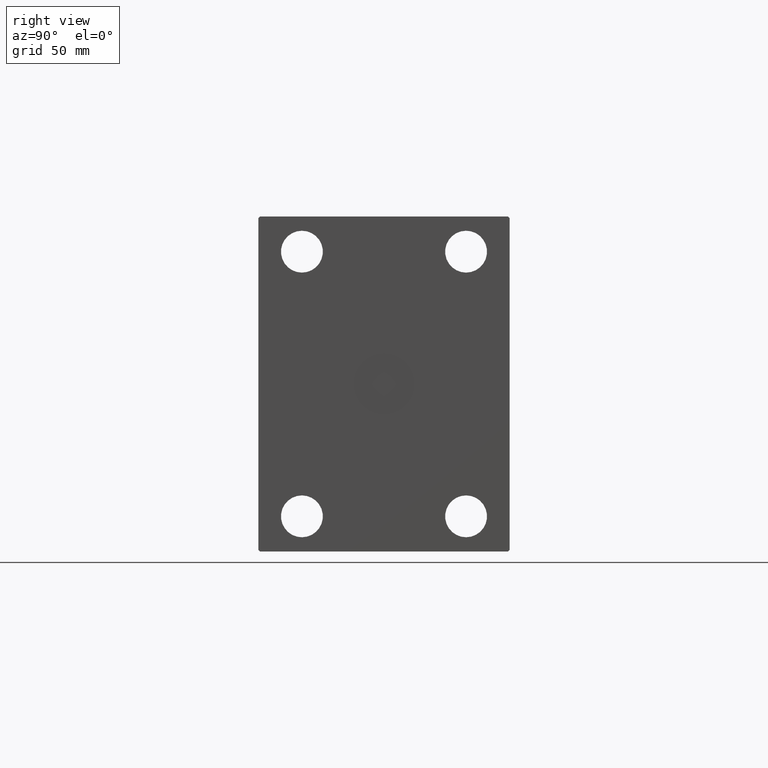
[diagram: clean part render]
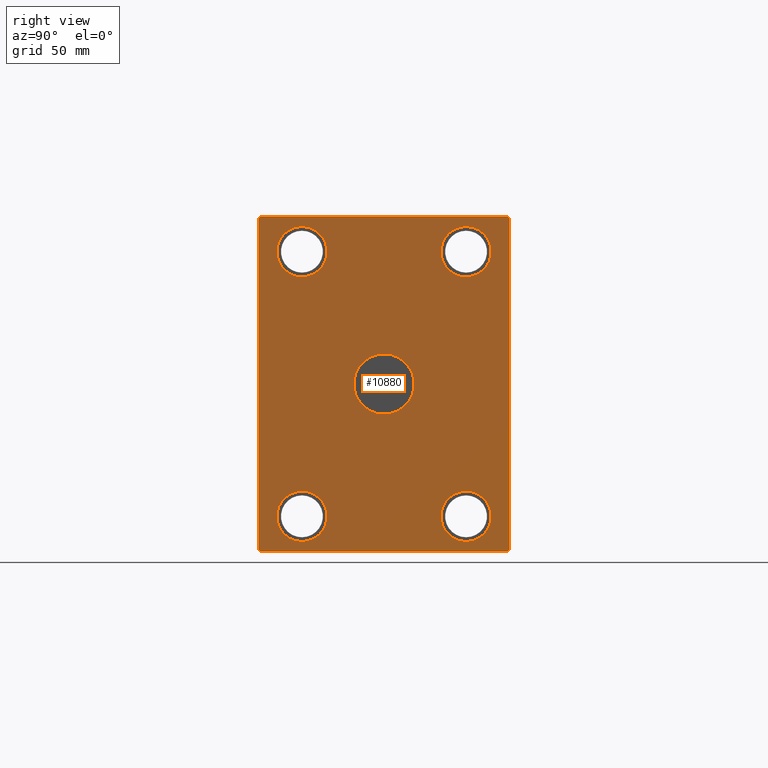
[diagram: same view with one face highlighted and labeled with its STEP entity id]
A machine part, right view. The second image highlights one B-rep face of the part: STEP entity #10880.
In plain terms, the highlighted planar face has unit normal (1, 0, 0).
Its self-contained STEP definition (entity closure, byte-faithful):
#8 = CARTESIAN_POINT ( 'NONE',  ( 358.0000000000000000, 75.00000000000000000, 98.99999999999995737 ) ) ;
#432 = DIRECTION ( 'NONE',  ( 0.000000000000000000, 1.000000000000000000, 0.000000000000000000 ) ) ;
#550 = CARTESIAN_POINT ( 'NONE',  ( 358.0000000000000000, 74.00000000000001421, -100.0000000000000426 ) ) ;
#890 = EDGE_CURVE ( 'NONE', #23449, #30801, #26141, .T. ) ;
#898 = EDGE_CURVE ( 'NONE', #18135, #34426, #42270, .T. ) ;
#954 = DIRECTION ( 'NONE',  ( 0.000000000000000000, 0.000000000000000000, 1.000000000000000000 ) ) ;
#1129 = CARTESIAN_POINT ( 'NONE',  ( 358.0000000000000000, 49.00000000000000711, -79.00000000000001421 ) ) ;
#1381 = EDGE_CURVE ( 'NONE', #10960, #2651, #29447, .T. ) ;
#1555 = AXIS2_PLACEMENT_3D ( 'NONE', #18050, #11605, #1728 ) ;
#1728 = DIRECTION ( 'NONE',  ( 0.000000000000000000, 0.000000000000000000, -1.000000000000000000 ) ) ;
#2464 = DIRECTION ( 'NONE',  ( 0.000000000000000000, 0.000000000000000000, -1.000000000000000000 ) ) ;
#2478 = CARTESIAN_POINT ( 'NONE',  ( 358.0000000000000000, -75.00000000000000000, 98.99999999999994316 ) ) ;
#2519 = LINE ( 'NONE', #25722, #22067 ) ;
#2651 = VERTEX_POINT ( 'NONE', #550 ) ;
#2658 = CIRCLE ( 'NONE', #15021, 18.00000000000000000 ) ;
#3000 = VERTEX_POINT ( 'NONE', #7366 ) ;
#3231 = CARTESIAN_POINT ( 'NONE',  ( 358.0000000000000000, -73.99999999999998579, -100.0000000000000426 ) ) ;
#3235 = CARTESIAN_POINT ( 'NONE',  ( 358.0000000000000000, 2.204364238465235428E-15, 18.00000000000000000 ) ) ;
#3285 = AXIS2_PLACEMENT_3D ( 'NONE', #1129, #14231, #9791 ) ;
#3780 = EDGE_CURVE ( 'NONE', #11423, #10848, #8267, .T. ) ;
#4087 = EDGE_CURVE ( 'NONE', #39262, #14879, #38467, .T. ) ;
#4172 = DIRECTION ( 'NONE',  ( -1.000000000000000000, -0.000000000000000000, -0.000000000000000000 ) ) ;
#4258 = ORIENTED_EDGE ( 'NONE', *, *, #11137, .T. ) ;
#4363 = DIRECTION ( 'NONE',  ( 0.000000000000000000, 0.000000000000000000, -1.000000000000000000 ) ) ;
#5203 = ORIENTED_EDGE ( 'NONE', *, *, #36385, .T. ) ;
#5744 = DIRECTION ( 'NONE',  ( 1.000000000000000000, -0.000000000000000000, -0.000000000000000000 ) ) ;
#6382 = CIRCLE ( 'NONE', #1555, 15.00000000000000000 ) ;
#6425 = AXIS2_PLACEMENT_3D ( 'NONE', #41181, #5744, #11755 ) ;
#6470 = CARTESIAN_POINT ( 'NONE',  ( 358.0000000000000000, 49.00000000000000711, -64.00000000000001421 ) ) ;
#6875 = DIRECTION ( 'NONE',  ( 0.000000000000000000, 0.000000000000000000, -1.000000000000000000 ) ) ;
#7366 = CARTESIAN_POINT ( 'NONE',  ( 358.0000000000000000, 74.00000000000000000, 99.99999999999995737 ) ) ;
#7998 = VERTEX_POINT ( 'NONE', #21703 ) ;
#8267 = LINE ( 'NONE', #37479, #10770 ) ;
#8526 = ORIENTED_EDGE ( 'NONE', *, *, #898, .T. ) ;
#8850 = VECTOR ( 'NONE', #11820, 1000.000000000000000 ) ;
#8950 = CARTESIAN_POINT ( 'NONE',  ( 358.0000000000000000, 0.000000000000000000, -18.00000000000000000 ) ) ;
#9668 = FACE_BOUND ( 'NONE', #37183, .T. ) ;
#9791 = DIRECTION ( 'NONE',  ( 0.000000000000000000, 0.000000000000000000, 1.000000000000000000 ) ) ;
#9884 = PLANE ( 'NONE',  #41755 ) ;
#10184 = CARTESIAN_POINT ( 'NONE',  ( 358.0000000000000000, -48.99999999999999289, 64.00000000000001421 ) ) ;
#10315 = EDGE_LOOP ( 'NONE', ( #4258, #31095, #20140, #32267, #5203, #22581, #21404, #28237 ) ) ;
#10770 = VECTOR ( 'NONE', #14921, 1000.000000000000000 ) ;
#10848 = VERTEX_POINT ( 'NONE', #8 ) ;
#10880 = ADVANCED_FACE ( 'NONE', ( #13104, #39933, #9668, #23191, #19310, #23404 ), #9884, .T. ) ;
#10960 = VERTEX_POINT ( 'NONE', #30492 ) ;
#11011 = ORIENTED_EDGE ( 'NONE', *, *, #27514, .T. ) ;
#11137 = EDGE_CURVE ( 'NONE', #10848, #3000, #22719, .T. ) ;
#11379 = VECTOR ( 'NONE', #432, 1000.000000000000000 ) ;
#11423 = VERTEX_POINT ( 'NONE', #29122 ) ;
#11468 = LINE ( 'NONE', #21968, #17016 ) ;
#11605 = DIRECTION ( 'NONE',  ( 1.000000000000000000, -0.000000000000000000, -0.000000000000000000 ) ) ;
#11755 = DIRECTION ( 'NONE',  ( 0.000000000000000000, 0.000000000000000000, -1.000000000000000000 ) ) ;
#11795 = EDGE_CURVE ( 'NONE', #3000, #39262, #28156, .T. ) ;
#11820 = DIRECTION ( 'NONE',  ( 0.000000000000000000, -1.000000000000000000, -9.376883653928687363E-17 ) ) ;
#12148 = EDGE_CURVE ( 'NONE', #28879, #18082, #2658, .T. ) ;
#12253 = EDGE_CURVE ( 'NONE', #14879, #32835, #11468, .T. ) ;
#12269 = ORIENTED_EDGE ( 'NONE', *, *, #13261, .T. ) ;
#12784 = CARTESIAN_POINT ( 'NONE',  ( 358.0000000000000000, 0.000000000000000000, 0.000000000000000000 ) ) ;
#12915 = DIRECTION ( 'NONE',  ( 0.000000000000000000, -0.7071067811865474617, -0.7071067811865474617 ) ) ;
#13002 = DIRECTION ( 'NONE',  ( 0.000000000000000000, 0.000000000000000000, -1.000000000000000000 ) ) ;
#13104 = FACE_BOUND ( 'NONE', #16454, .T. ) ;
#13261 = EDGE_CURVE ( 'NONE', #28936, #7998, #23181, .T. ) ;
#13545 = EDGE_LOOP ( 'NONE', ( #11011, #8526 ) ) ;
#14025 = DIRECTION ( 'NONE',  ( 1.000000000000000000, -0.000000000000000000, -0.000000000000000000 ) ) ;
#14231 = DIRECTION ( 'NONE',  ( -1.000000000000000000, -0.000000000000000000, -0.000000000000000000 ) ) ;
#14861 = ORIENTED_EDGE ( 'NONE', *, *, #28295, .F. ) ;
#14879 = VERTEX_POINT ( 'NONE', #2478 ) ;
#14921 = DIRECTION ( 'NONE',  ( 0.000000000000000000, -7.008983741320432232E-17, 1.000000000000000000 ) ) ;
#15021 = AXIS2_PLACEMENT_3D ( 'NONE', #12784, #25895, #13002 ) ;
#15453 = VECTOR ( 'NONE', #15850, 1000.000000000000114 ) ;
#15715 = CARTESIAN_POINT ( 'NONE',  ( 358.0000000000000000, -74.00000000000000000, 99.99999999999994316 ) ) ;
#15850 = DIRECTION ( 'NONE',  ( 0.000000000000000000, 0.7071067811865474617, -0.7071067811865474617 ) ) ;
#15977 = AXIS2_PLACEMENT_3D ( 'NONE', #32608, #32821, #16287 ) ;
#16143 = AXIS2_PLACEMENT_3D ( 'NONE', #33599, #4172, #954 ) ;
#16287 = DIRECTION ( 'NONE',  ( 0.000000000000000000, 0.000000000000000000, -1.000000000000000000 ) ) ;
#16454 = EDGE_LOOP ( 'NONE', ( #14861, #39900 ) ) ;
#16457 = CARTESIAN_POINT ( 'NONE',  ( 358.0000000000000000, -48.99999999999999289, -94.00000000000001421 ) ) ;
#16976 = EDGE_LOOP ( 'NONE', ( #18537, #33358 ) ) ;
#17016 = VECTOR ( 'NONE', #21336, 1000.000000000000000 ) ;
#18050 = CARTESIAN_POINT ( 'NONE',  ( 358.0000000000000000, -48.99999999999999289, -79.00000000000001421 ) ) ;
#18082 = VERTEX_POINT ( 'NONE', #8950 ) ;
#18135 = VERTEX_POINT ( 'NONE', #31719 ) ;
#18537 = ORIENTED_EDGE ( 'NONE', *, *, #31298, .F. ) ;
#18816 = DIRECTION ( 'NONE',  ( 0.000000000000000000, 0.000000000000000000, 1.000000000000000000 ) ) ;
#19310 = FACE_BOUND ( 'NONE', #16976, .T. ) ;
#19390 = AXIS2_PLACEMENT_3D ( 'NONE', #26694, #26488, #23044 ) ;
#20140 = ORIENTED_EDGE ( 'NONE', *, *, #4087, .T. ) ;
#20671 = CARTESIAN_POINT ( 'NONE',  ( 358.0000000000000000, 49.00000000000000711, 79.00000000000001421 ) ) ;
#20782 = ORIENTED_EDGE ( 'NONE', *, *, #35991, .T. ) ;
#21336 = DIRECTION ( 'NONE',  ( 0.000000000000000000, 1.401796748264086446E-16, -1.000000000000000000 ) ) ;
#21404 = ORIENTED_EDGE ( 'NONE', *, *, #22744, .T. ) ;
#21635 = DIRECTION ( 'NONE',  ( 0.000000000000000000, 0.7071067811865474617, 0.7071067811865474617 ) ) ;
#21703 = CARTESIAN_POINT ( 'NONE',  ( 358.0000000000000000, 49.00000000000000711, -94.00000000000001421 ) ) ;
#21968 = CARTESIAN_POINT ( 'NONE',  ( 358.0000000000000000, -75.00000000000000000, 98.99999999999994316 ) ) ;
#22067 = VECTOR ( 'NONE', #21635, 1000.000000000000114 ) ;
#22581 = ORIENTED_EDGE ( 'NONE', *, *, #1381, .T. ) ;
#22719 = LINE ( 'NONE', #36030, #26012 ) ;
#22744 = EDGE_CURVE ( 'NONE', #2651, #11423, #2519, .T. ) ;
#23044 = DIRECTION ( 'NONE',  ( 0.000000000000000000, 0.000000000000000000, 1.000000000000000000 ) ) ;
#23181 = CIRCLE ( 'NONE', #3285, 15.00000000000000000 ) ;
#23191 = FACE_OUTER_BOUND ( 'NONE', #10315, .T. ) ;
#23404 = FACE_BOUND ( 'NONE', #39851, .T. ) ;
#23449 = VERTEX_POINT ( 'NONE', #31740 ) ;
#23712 = AXIS2_PLACEMENT_3D ( 'NONE', #24862, #37947, #18816 ) ;
#24389 = CIRCLE ( 'NONE', #16143, 15.00000000000000000 ) ;
#24473 = VECTOR ( 'NONE', #12915, 1000.000000000000114 ) ;
#24484 = CARTESIAN_POINT ( 'NONE',  ( 358.0000000000000000, -74.99999999999997158, -99.00000000000005684 ) ) ;
#24825 = CIRCLE ( 'NONE', #30325, 15.00000000000000000 ) ;
#24862 = CARTESIAN_POINT ( 'NONE',  ( 358.0000000000000000, -48.99999999999999289, 79.00000000000001421 ) ) ;
#25722 = CARTESIAN_POINT ( 'NONE',  ( 358.0000000000000000, 74.00000000000001421, -100.0000000000000426 ) ) ;
#25895 = DIRECTION ( 'NONE',  ( 1.000000000000000000, 0.000000000000000000, 0.000000000000000000 ) ) ;
#26012 = VECTOR ( 'NONE', #32603, 1000.000000000000114 ) ;
#26141 = CIRCLE ( 'NONE', #6425, 15.00000000000000000 ) ;
#26213 = DIRECTION ( 'NONE',  ( 1.000000000000000000, 0.000000000000000000, 0.000000000000000000 ) ) ;
#26488 = DIRECTION ( 'NONE',  ( -1.000000000000000000, -0.000000000000000000, -0.000000000000000000 ) ) ;
#26694 = CARTESIAN_POINT ( 'NONE',  ( 358.0000000000000000, -48.99999999999999289, 79.00000000000001421 ) ) ;
#27514 = EDGE_CURVE ( 'NONE', #34426, #18135, #31067, .T. ) ;
#28156 = LINE ( 'NONE', #41242, #8850 ) ;
#28237 = ORIENTED_EDGE ( 'NONE', *, *, #3780, .T. ) ;
#28295 = EDGE_CURVE ( 'NONE', #18082, #28879, #30399, .T. ) ;
#28526 = CARTESIAN_POINT ( 'NONE',  ( 358.0000000000000000, -74.99999999999997158, -99.00000000000005684 ) ) ;
#28879 = VERTEX_POINT ( 'NONE', #3235 ) ;
#28936 = VERTEX_POINT ( 'NONE', #6470 ) ;
#29122 = CARTESIAN_POINT ( 'NONE',  ( 358.0000000000000000, 75.00000000000001421, -99.00000000000004263 ) ) ;
#29323 = VERTEX_POINT ( 'NONE', #16457 ) ;
#29447 = LINE ( 'NONE', #3231, #11379 ) ;
#29756 = EDGE_CURVE ( 'NONE', #30801, #23449, #24825, .T. ) ;
#30325 = AXIS2_PLACEMENT_3D ( 'NONE', #20671, #14025, #4363 ) ;
#30399 = CIRCLE ( 'NONE', #15977, 18.00000000000000000 ) ;
#30492 = CARTESIAN_POINT ( 'NONE',  ( 358.0000000000000000, -73.99999999999998579, -100.0000000000000426 ) ) ;
#30558 = AXIS2_PLACEMENT_3D ( 'NONE', #31473, #31897, #2464 ) ;
#30801 = VERTEX_POINT ( 'NONE', #39181 ) ;
#31067 = CIRCLE ( 'NONE', #19390, 15.00000000000000000 ) ;
#31095 = ORIENTED_EDGE ( 'NONE', *, *, #11795, .T. ) ;
#31298 = EDGE_CURVE ( 'NONE', #29323, #41650, #6382, .T. ) ;
#31443 = CARTESIAN_POINT ( 'NONE',  ( 358.0000000000000000, -74.00000000000000000, 99.99999999999994316 ) ) ;
#31473 = CARTESIAN_POINT ( 'NONE',  ( 358.0000000000000000, -48.99999999999999289, -79.00000000000001421 ) ) ;
#31719 = CARTESIAN_POINT ( 'NONE',  ( 358.0000000000000000, -48.99999999999999289, 94.00000000000001421 ) ) ;
#31740 = CARTESIAN_POINT ( 'NONE',  ( 358.0000000000000000, 49.00000000000000711, 64.00000000000001421 ) ) ;
#31897 = DIRECTION ( 'NONE',  ( 1.000000000000000000, -0.000000000000000000, -0.000000000000000000 ) ) ;
#32267 = ORIENTED_EDGE ( 'NONE', *, *, #12253, .T. ) ;
#32603 = DIRECTION ( 'NONE',  ( 0.000000000000000000, -0.7071067811865474617, 0.7071067811865474617 ) ) ;
#32608 = CARTESIAN_POINT ( 'NONE',  ( 358.0000000000000000, 0.000000000000000000, 0.000000000000000000 ) ) ;
#32821 = DIRECTION ( 'NONE',  ( 1.000000000000000000, 0.000000000000000000, 0.000000000000000000 ) ) ;
#32835 = VERTEX_POINT ( 'NONE', #24484 ) ;
#33358 = ORIENTED_EDGE ( 'NONE', *, *, #35743, .F. ) ;
#33599 = CARTESIAN_POINT ( 'NONE',  ( 358.0000000000000000, 49.00000000000000711, -79.00000000000001421 ) ) ;
#34426 = VERTEX_POINT ( 'NONE', #10184 ) ;
#35051 = ORIENTED_EDGE ( 'NONE', *, *, #29756, .F. ) ;
#35743 = EDGE_CURVE ( 'NONE', #41650, #29323, #38068, .T. ) ;
#35991 = EDGE_CURVE ( 'NONE', #7998, #28936, #24389, .T. ) ;
#36030 = CARTESIAN_POINT ( 'NONE',  ( 358.0000000000000000, 75.00000000000000000, 98.99999999999995737 ) ) ;
#36290 = CARTESIAN_POINT ( 'NONE',  ( 358.0000000000000000, 0.000000000000000000, 0.000000000000000000 ) ) ;
#36385 = EDGE_CURVE ( 'NONE', #32835, #10960, #42483, .T. ) ;
#37110 = CARTESIAN_POINT ( 'NONE',  ( 358.0000000000000000, -48.99999999999999289, -64.00000000000001421 ) ) ;
#37183 = EDGE_LOOP ( 'NONE', ( #20782, #12269 ) ) ;
#37479 = CARTESIAN_POINT ( 'NONE',  ( 358.0000000000000000, 75.00000000000001421, -99.00000000000004263 ) ) ;
#37947 = DIRECTION ( 'NONE',  ( -1.000000000000000000, -0.000000000000000000, -0.000000000000000000 ) ) ;
#38068 = CIRCLE ( 'NONE', #30558, 15.00000000000000000 ) ;
#38259 = ORIENTED_EDGE ( 'NONE', *, *, #890, .F. ) ;
#38467 = LINE ( 'NONE', #15715, #24473 ) ;
#39181 = CARTESIAN_POINT ( 'NONE',  ( 358.0000000000000000, 49.00000000000000711, 94.00000000000001421 ) ) ;
#39262 = VERTEX_POINT ( 'NONE', #31443 ) ;
#39851 = EDGE_LOOP ( 'NONE', ( #38259, #35051 ) ) ;
#39900 = ORIENTED_EDGE ( 'NONE', *, *, #12148, .F. ) ;
#39933 = FACE_BOUND ( 'NONE', #13545, .T. ) ;
#41181 = CARTESIAN_POINT ( 'NONE',  ( 358.0000000000000000, 49.00000000000000711, 79.00000000000001421 ) ) ;
#41242 = CARTESIAN_POINT ( 'NONE',  ( 358.0000000000000000, 74.00000000000000000, 99.99999999999995737 ) ) ;
#41650 = VERTEX_POINT ( 'NONE', #37110 ) ;
#41755 = AXIS2_PLACEMENT_3D ( 'NONE', #36290, #26213, #6875 ) ;
#42270 = CIRCLE ( 'NONE', #23712, 15.00000000000000000 ) ;
#42483 = LINE ( 'NONE', #28526, #15453 ) ;